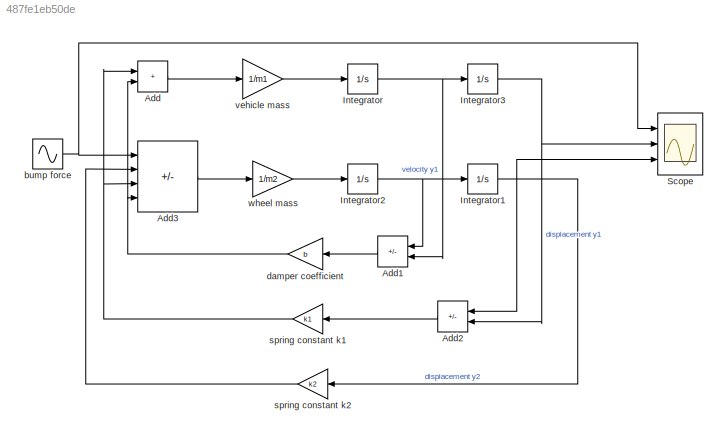
MODEL slx_487fe1eb50de
KIND model
CONFIG AbsTol = auto
CONFIG EnableMultiTasking = off
CONFIG FixedStep = auto
CONFIG MaxStep = auto
CONFIG MinStep = auto
CONFIG RelTol = 1e-3
CONFIG SampleTimeConstraint = Unconstrained
CONFIG SolverName = VariableStepAuto
CONFIG StartTime = 0.0
CONFIG StopTime = 10.0
WORKSPACE source: mxarray member
WORKSPACE Param5: Simulink.Parameter (value not decoded)
WORKSPACE Sig: Simulink.Signal (value not decoded)
WORKSPACE b: Simulink.Parameter (value not decoded)
WORKSPACE k1: Simulink.Parameter (value not decoded)
WORKSPACE k2: Simulink.Parameter (value not decoded)
WORKSPACE m1: Simulink.Parameter (value not decoded)
WORKSPACE m2: Simulink.Parameter (value not decoded)
BLOCK [Sum] Add
  IconShape = rectangular
  Ports = [2, 1]
BLOCK [Sum] Add1
  IconShape = rectangular
  Inputs = +-
  Ports = [2, 1]
BLOCK [Sum] Add2
  IconShape = rectangular
  Inputs = +-
  Ports = [2, 1]
BLOCK [Sum] Add3
  IconShape = rectangular
  Inputs = +---
  Ports = [4, 1]
BLOCK [Integrator] Integrator
  Ports = [1, 1]
BLOCK [Integrator] Integrator1
  Ports = [1, 1]
BLOCK [Integrator] Integrator2
  Ports = [1, 1]
BLOCK [Integrator] Integrator3
  Ports = [1, 1]
BLOCK [Scope] Scope
  Floating = off
  NumInputPorts = 3
  Ports = [3]
  ScopeSpecificationString = Simulink.scopes.TimeScopeBlockCfg('CurrentConfiguration', extmgr.ConfigurationSet(extmgr.Configuration('Core','General UI',true),extmgr.Configuration('Core','Source UI',true),extmgr.Configuration('Sources','WiredSimulink',true),extmgr.Configuration('Visuals','Time Domain',true),extmgr.Configuration('Tools','Plot Navigation',true),extmgr.Configuration('Tools','Measurements',true,'Version','2020b'))...<+19ch>
BLOCK [Sin] bump force
  Ports = [0, 1]
  SampleTime = 0
BLOCK [Gain] damper coefficient
  Gain = b
BLOCK [Gain] spring constant k1
  Gain = k1
BLOCK [Gain] spring constant k2
  Gain = k2
BLOCK [Gain] vehicle mass
  Gain = 1/m1
BLOCK [Gain] wheel mass
  Gain = 1/m2
LINE Add1:1 -> damper coefficient:1
LINE Add2:1 -> spring constant k1:1
LINE Add3:1 -> wheel mass:1
LINE Add:1 -> vehicle mass:1
NET Integrator1:1 -> Add2:1, Scope:3, spring constant k2:1
NET Integrator2:1 -> Add1:1, Integrator1:1
NET Integrator3:1 -> Add2:2, Scope:2
NET Integrator:1 -> Add1:2, Integrator3:1
NET bump force:1 -> Add3:1, Scope:1
NET damper coefficient:1 -> Add3:4, Add:2
NET spring constant k1:1 -> Add3:3, Add:1
LINE spring constant k2:1 -> Add3:2
LINE vehicle mass:1 -> Integrator:1
LINE wheel mass:1 -> Integrator2:1
note: NET lines group one-source signal fan-out (src -> all destinations, sorted); 1:1 wires keep LINE
